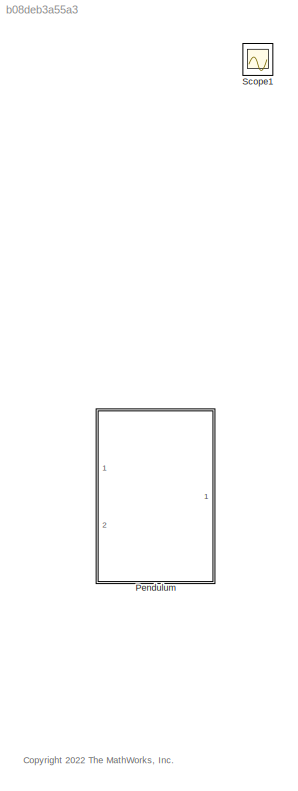
MODEL slx_b08deb3a55a3
KIND model
CONFIG AbsTol = auto
CONFIG EnableMultiTasking = off
CONFIG FixedStep = Ts
CONFIG InitFcn = Ts = 0.01;
CONFIG MaxStep = auto
CONFIG MinStep = auto
CONFIG RelTol = 1e-3
CONFIG SampleTimeConstraint = Unconstrained
CONFIG SolverName = FixedStepAuto
CONFIG StartTime = 0.0
CONFIG StopTime = 10
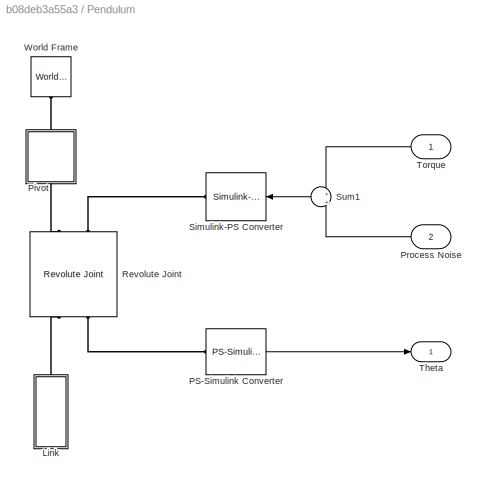
BLOCK [SubSystem] Pendulum
  Ports = [2, 1]
  RequestExecContextInheritance = off
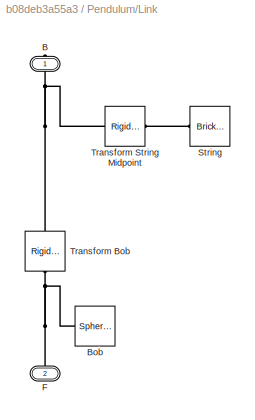
BLOCK [SubSystem] Pendulum/Link
  NameLocation = right
  Ports = [0, 0, 0, 0, 0, 1, 1]
  RequestExecContextInheritance = off
  Tag = CustomStyle
BLOCK [PMIOPort] Pendulum/Link/B
  NameLocation = right
  Side = Right
BLOCK [Reference] Pendulum/Link/Bob  REF=sm_lib/Body Elements/Spherical Solid
  Ports = [0, 0, 0, 0, 0, 0, 1]
  SourceBlock = sm_lib/Body Elements/Spherical Solid
  SourceProductBaseCode = MS
  SourceType = Spherical Solid
BLOCK [PMIOPort] Pendulum/Link/F
  NameLocation = right
  Port = 2
  Side = Left
BLOCK [Reference] Pendulum/Link/String  REF=sm_lib/Body Elements/Brick Solid
  Ports = [0, 0, 0, 0, 0, 0, 1]
  SourceBlock = sm_lib/Body Elements/Brick Solid
  SourceProductBaseCode = MS
  SourceType = Brick Solid
BLOCK [Reference] Pendulum/Link/Transform Bob   REF=sm_lib/Frames and
Transforms/Rigid
Transform
  NameLocation = right
  Ports = [0, 0, 0, 0, 0, 1, 1]
  SourceBlock = sm_lib/Frames and\nTransforms/Rigid\nTransform
  SourceProductBaseCode = MS
  SourceType = Rigid\nTransform
BLOCK [Reference] Pendulum/Link/Transform String Midpoint  REF=sm_lib/Frames and
Transforms/Rigid
Transform
  Ports = [0, 0, 0, 0, 0, 1, 1]
  SourceBlock = sm_lib/Frames and\nTransforms/Rigid\nTransform
  SourceProductBaseCode = MS
  SourceType = Rigid\nTransform
BLOCK [Reference] Pendulum/PS-Simulink Converter  REF=nesl_utility/PS-Simulink
Converter
  Ports = [0, 1, 0, 0, 0, 1]
  SourceBlock = nesl_utility/PS-Simulink\nConverter
  SourceProductBaseCode = SS
  SourceType = PS-Simulink\nConverter
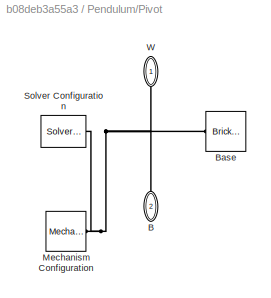
BLOCK [SubSystem] Pendulum/Pivot
  NameLocation = right
  Ports = [0, 0, 0, 0, 0, 1, 1]
  RequestExecContextInheritance = off
  Tag = CustomStyle
BLOCK [PMIOPort] Pendulum/Pivot/B
  NameLocation = right
  Port = 2
  Side = Right
BLOCK [Reference] Pendulum/Pivot/Base  REF=sm_lib/Body Elements/Brick Solid
  Ports = [0, 0, 0, 0, 0, 0, 1]
  SourceBlock = sm_lib/Body Elements/Brick Solid
  SourceProductBaseCode = MS
  SourceType = Brick Solid
BLOCK [Reference] Pendulum/Pivot/Mechanism Configuration  REF=sm_lib/Utilities/Mechanism
Configuration
  Ports = [0, 0, 0, 0, 0, 0, 1]
  SourceBlock = sm_lib/Utilities/Mechanism\nConfiguration
  SourceProductBaseCode = MS
  SourceType = Mechanism\nConfiguration
BLOCK [Reference] Pendulum/Pivot/Solver Configuration  REF=nesl_utility/Solver
Configuration
  Ports = [0, 0, 0, 0, 0, 0, 1]
  SourceBlock = nesl_utility/Solver\nConfiguration
  SourceProductBaseCode = SS
  SourceType = Solver\nConfiguration
BLOCK [PMIOPort] Pendulum/Pivot/W
  NameLocation = right
  Side = Left
BLOCK [Inport] Pendulum/Process Noise
  NameLocation = top
  Port = 2
BLOCK [Reference] Pendulum/Revolute Joint  REF=sm_lib/Joints/Revolute Joint
  NameLocation = right
  Ports = [0, 0, 0, 0, 0, 2, 2]
  SourceBlock = sm_lib/Joints/Revolute Joint
  SourceProductBaseCode = MS
  SourceType = Revolute Joint
BLOCK [Reference] Pendulum/Simulink-PS Converter  REF=nesl_utility/Simulink-PS
Converter
  NameLocation = top
  Ports = [1, 0, 0, 0, 0, 0, 1]
  SourceBlock = nesl_utility/Simulink-PS\nConverter
  SourceProductBaseCode = SS
  SourceType = Simulink-PS\nConverter
BLOCK [Sum] Pendulum/Sum1
  Inputs = +|+
  NameLocation = top
  Ports = [2, 1]
BLOCK [Outport] Pendulum/Theta
BLOCK [Inport] Pendulum/Torque
  NameLocation = top
BLOCK [Reference] Pendulum/World Frame  REF=sm_lib/Frames and
Transforms/World Frame
  NameLocation = right
  Ports = [0, 0, 0, 0, 0, 0, 1]
  SourceBlock = sm_lib/Frames and\nTransforms/World Frame
  SourceProductBaseCode = MS
  SourceType = World Frame
BLOCK [Scope] Scope1
  Floating = off
  IOType = viewer
  NumInputPorts = 1
  Ports = []
  ScopeSpecificationString = Simulink.scopes.TimeScopeBlockCfg('CurrentConfiguration', extmgr.ConfigurationSet(extmgr.Configuration('Core','General UI',true),extmgr.Configuration('Core','Source UI',true),extmgr.Configuration('Sources','WiredSimulink',true),extmgr.Configuration('Visuals','Time Domain',true,'SerializedDisplays',{struct('MinYLimReal','-10.00000','MaxYLimReal','10.00000','YLabelReal','','MinYLimMag','0.00000','Ma...<+1326ch>
ANNOTATION (root): <copyright redacted>
LINE Pendulum/PS-Simulink Converter:1 -> Pendulum/Theta:1
LINE Pendulum/Process Noise:1 -> Pendulum/Sum1:2
LINE Pendulum/Sum1:1 -> Pendulum/Simulink-PS Converter:1
LINE Pendulum/Torque:1 -> Pendulum/Sum1:1
PNET net1: Pendulum/Link/B:RConn1 -- Pendulum/Link/Transform Bob :LConn1 -- Pendulum/Link/Transform String Midpoint:LConn1
PNET net2: Pendulum/Link/Bob:RConn1 -- Pendulum/Link/F:RConn1 -- Pendulum/Link/Transform Bob :RConn1
PLINE Pendulum/Link/String:RConn1 -- Pendulum/Link/Transform String Midpoint:RConn1
PLINE Pendulum/Link:RConn1 -- Pendulum/Revolute Joint:RConn1
PLINE Pendulum/PS-Simulink Converter:LConn1 -- Pendulum/Revolute Joint:RConn2
PNET net3: Pendulum/Pivot/B:RConn1 -- Pendulum/Pivot/Base:RConn1 -- Pendulum/Pivot/Mechanism Configuration:RConn1 -- Pendulum/Pivot/Solver Configuration:RConn1 -- Pendulum/Pivot/W:RConn1
PLINE Pendulum/Pivot:LConn1 -- Pendulum/World Frame:RConn1
PLINE Pendulum/Pivot:RConn1 -- Pendulum/Revolute Joint:LConn1
PLINE Pendulum/Revolute Joint:LConn2 -- Pendulum/Simulink-PS Converter:RConn1
note: PNET lines group multi-terminal physical nets as a canonical sorted terminal list (undirected conserving connections); 2-terminal nets keep the pairwise PLINE form
